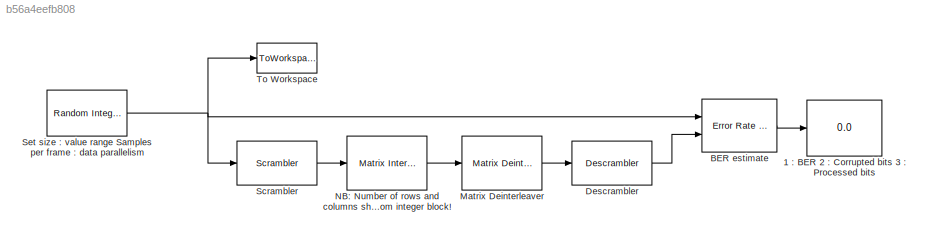
MODEL slx_b56a4eefb808
KIND model
CONFIG AbsTol = auto
CONFIG EnableMultiTasking = off
CONFIG FixedStep = auto
CONFIG MaxStep = auto
CONFIG MinStep = auto
CONFIG RelTol = 1e-3
CONFIG SampleTimeConstraint = Unconstrained
CONFIG Solver = FixedStepAuto
CONFIG SolverName = FixedStepAuto
CONFIG StartTime = 0
CONFIG StopTime = 100e-3
WORKSPACE source: MAT-file member
WORKSPACE M = 4
BLOCK [Display] 1 : BER 2 : Corrupted bits 3 : Processed bits
  Decimation = 1
  Ports = [1]
BLOCK [Reference] BER estimate  REF=commsink2/Error Rate
Calculation
  Ports = [2, 1]
  SourceBlock = commsink2/Error Rate\nCalculation
  SourceProductBaseCode = CM
  SourceProductName = Communications System Toolbox
  SourceType = Error Rate Calculation
BLOCK [Reference] Descrambler  REF=commsequence2/Descrambler
  Ports = [1, 1]
  SourceBlock = commsequence2/Descrambler
  SourceProductBaseCode = CM
  SourceProductName = Communications System Toolbox
  SourceType = Descrambler
BLOCK [Reference] Matrix Deinterleaver  REF=commblkintrlv2/Matrix
Deinterleaver
  Ports = [1, 1]
  SourceBlock = commblkintrlv2/Matrix\nDeinterleaver
  SourceProductBaseCode = CM
  SourceProductName = Communications System Toolbox
  SourceType = Matrix Deinterleaver
BLOCK [Reference] NB: Number of rows and columns shall match the sampleper-frame in the random integer block!  REF=commblkintrlv2/Matrix
Interleaver
  Ports = [1, 1]
  SourceBlock = commblkintrlv2/Matrix\nInterleaver
  SourceProductBaseCode = CM
  SourceProductName = Communications System Toolbox
  SourceType = Matrix Interleaver
BLOCK [Reference] Scrambler  REF=commsequence2/Scrambler
  Ports = [1, 1]
  SourceBlock = commsequence2/Scrambler
  SourceProductBaseCode = CM
  SourceProductName = Communications System Toolbox
  SourceType = Scrambler
BLOCK [Reference] Set size : value range Samples per frame : data parallelism  REF=commrandsrc3/Random Integer
Generator
  Ports = [0, 1]
  SourceBlock = commrandsrc3/Random Integer\nGenerator
  SourceProductBaseCode = CM
  SourceProductName = Communications System Toolbox
  SourceType = Random Integer Generator
BLOCK [ToWorkspace] To Workspace
  FixptAsFi = on
  MaxDataPoints = inf
  Ports = [1]
  SampleTime = -1
  Save2DSignal = 3-D array (concatenate along third dimension)
  SaveFormat = Timeseries
  VariableName = TxInfoBits
LINE BER estimate:1 -> 1 : BER 2 : Corrupted bits 3 : Processed bits:1
LINE Descrambler:1 -> BER estimate:2
LINE Matrix Deinterleaver:1 -> Descrambler:1
LINE NB: Number of rows and columns shall match the sampleper-frame in the random integer block!:1 -> Matrix Deinterleaver:1
LINE Scrambler:1 -> NB: Number of rows and columns shall match the sampleper-frame in the random integer block!:1
NET Set size : value range Samples per frame : data parallelism:1 -> BER estimate:1, Scrambler:1, To Workspace:1
note: NET lines group one-source signal fan-out (src -> all destinations, sorted); 1:1 wires keep LINE
